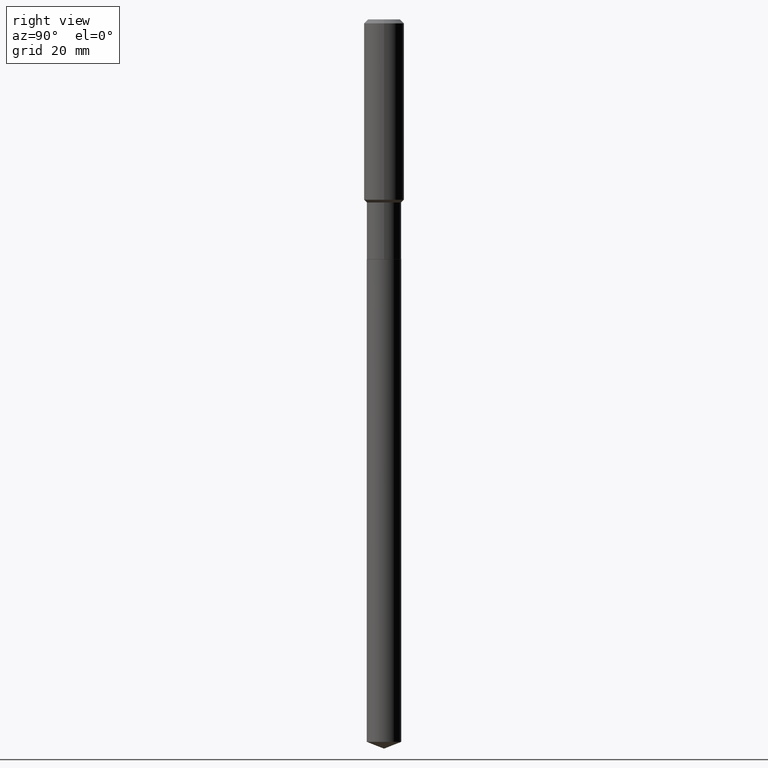
[diagram: clean part render]
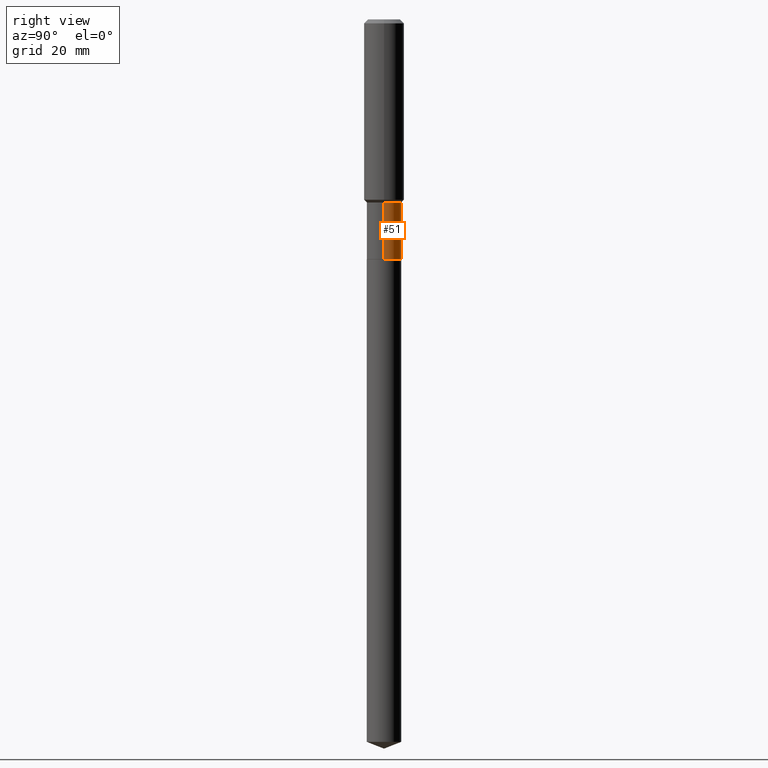
[diagram: same view with one face highlighted and labeled with its STEP entity id]
A machine part, right view. The second image highlights one B-rep face of the part: STEP entity #51.
In plain terms, the highlighted cylindrical surface (edge-blend (fillet) strip) has radius 4.3002 mm, axis along (-0, 0, 1).
Its self-contained STEP definition (entity closure, byte-faithful):
#9 = VERTEX_POINT ( 'NONE', #83 ) ;
#10 = CARTESIAN_POINT ( 'NONE',  ( 4.399887476088297056E-29, -6.281873224846586144E-15, -1.799199999999999688 ) ) ;
#11 = CARTESIAN_POINT ( 'NONE',  ( -0.1692999999999999783, 1.202948851641849460E-15, -8.327757107801554310E-30 ) ) ;
#16 = DIRECTION ( 'NONE',  ( 1.000000000000000000, -6.982962677686266711E-15, 0.000000000000000000 ) ) ;
#32 = DIRECTION ( 'NONE',  ( -2.445468806185136877E-29, 3.491481338843145188E-15, 1.000000000000000000 ) ) ;
#46 = CIRCLE ( 'NONE', #130, 0.1692999999999999505 ) ;
#47 = CARTESIAN_POINT ( 'NONE',  ( -0.1693000000000000338, -6.053396814875857644E-15, -2.357399999999999718 ) ) ;
#51 = ADVANCED_FACE ( 'NONE', ( #164 ), #133, .T. ) ;
#54 = CARTESIAN_POINT ( 'NONE',  ( 0.000000000000000000, 0.000000000000000000, 0.000000000000000000 ) ) ;
#56 = DIRECTION ( 'NONE',  ( -2.445468806185136597E-29, 3.491481338843145583E-15, 1.000000000000000000 ) ) ;
#75 = VECTOR ( 'NONE', #32, 39.37007874015748143 ) ;
#83 = CARTESIAN_POINT ( 'NONE',  ( 0.1692999999999999505, -7.464088806178870959E-15, -1.799199999999999688 ) ) ;
#130 = AXIS2_PLACEMENT_3D ( 'NONE', #10, #427, #16 ) ;
#132 = CARTESIAN_POINT ( 'NONE',  ( 0.1693000000000000338, -9.413033689521114852E-15, -2.357399999999999718 ) ) ;
#133 = CYLINDRICAL_SURFACE ( 'NONE', #294, 0.1692999999999999783 ) ;
#164 = FACE_OUTER_BOUND ( 'NONE', #440, .T. ) ;
#182 = LINE ( 'NONE', #417, #75 ) ;
#194 = CARTESIAN_POINT ( 'NONE',  ( 5.764948163700840429E-29, -8.230818108188830037E-15, -2.357399999999999718 ) ) ;
#216 = EDGE_CURVE ( 'NONE', #345, #9, #182, .T. ) ;
#233 = ORIENTED_EDGE ( 'NONE', *, *, #429, .T. ) ;
#250 = DIRECTION ( 'NONE',  ( -2.445468806185136597E-29, 3.491481338843145583E-15, 1.000000000000000000 ) ) ;
#256 = ORIENTED_EDGE ( 'NONE', *, *, #216, .F. ) ;
#260 = ORIENTED_EDGE ( 'NONE', *, *, #305, .F. ) ;
#294 = AXIS2_PLACEMENT_3D ( 'NONE', #54, #250, #428 ) ;
#305 = EDGE_CURVE ( 'NONE', #9, #334, #46, .T. ) ;
#324 = AXIS2_PLACEMENT_3D ( 'NONE', #194, #56, #360 ) ;
#334 = VERTEX_POINT ( 'NONE', #473 ) ;
#336 = VECTOR ( 'NONE', #404, 39.37007874015748143 ) ;
#345 = VERTEX_POINT ( 'NONE', #132 ) ;
#346 = CIRCLE ( 'NONE', #324, 0.1693000000000000338 ) ;
#360 = DIRECTION ( 'NONE',  ( 1.000000000000000000, -6.982962677686263555E-15, 0.000000000000000000 ) ) ;
#385 = ORIENTED_EDGE ( 'NONE', *, *, #457, .T. ) ;
#404 = DIRECTION ( 'NONE',  ( -2.445468806185136877E-29, 3.491481338843145188E-15, 1.000000000000000000 ) ) ;
#417 = CARTESIAN_POINT ( 'NONE',  ( 0.1692999999999999783, -1.182215581332284815E-15, 8.255367281422518423E-30 ) ) ;
#427 = DIRECTION ( 'NONE',  ( -2.445468806185136597E-29, 3.491481338843145583E-15, 1.000000000000000000 ) ) ;
#428 = DIRECTION ( 'NONE',  ( 1.000000000000000000, -6.982962677686266711E-15, 4.876176775795935793E-29 ) ) ;
#429 = EDGE_CURVE ( 'NONE', #450, #334, #434, .T. ) ;
#434 = LINE ( 'NONE', #11, #336 ) ;
#440 = EDGE_LOOP ( 'NONE', ( #385, #233, #260, #256 ) ) ;
#450 = VERTEX_POINT ( 'NONE', #47 ) ;
#457 = EDGE_CURVE ( 'NONE', #345, #450, #346, .T. ) ;
#473 = CARTESIAN_POINT ( 'NONE',  ( -0.1692999999999999505, -6.053396814875858433E-15, -1.799199999999999688 ) ) ;